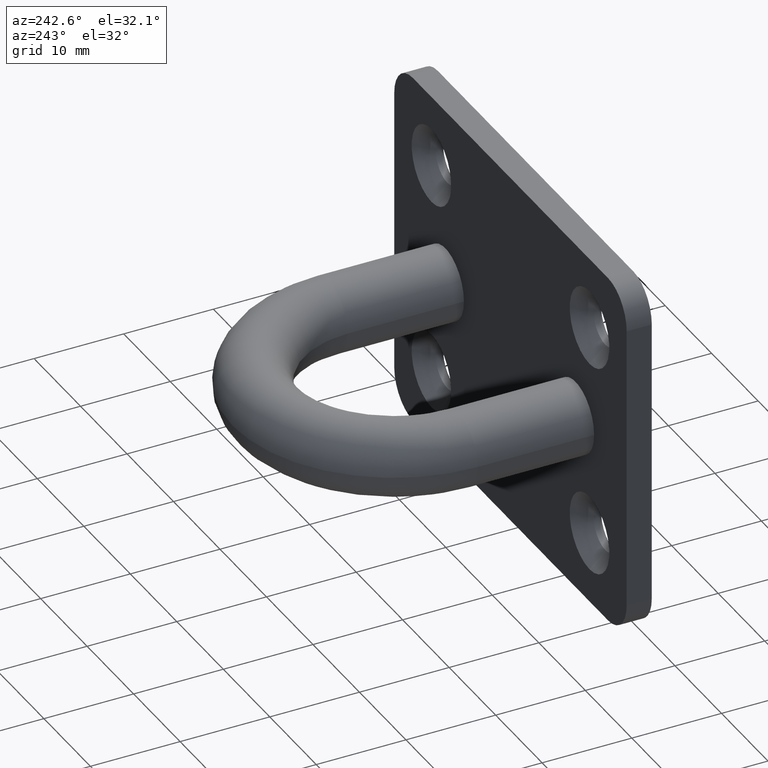
[diagram: clean part render]
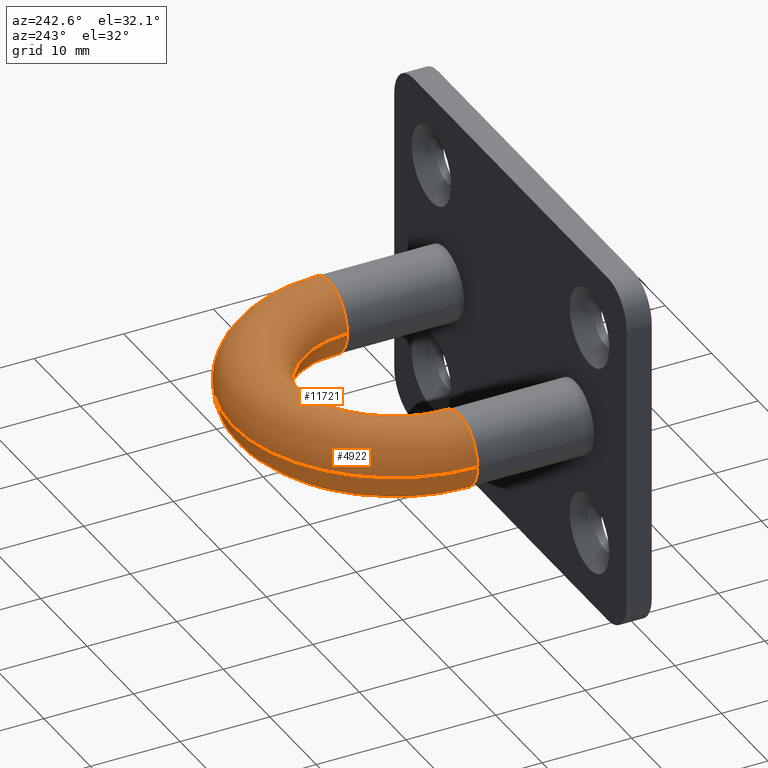
[diagram: same view with one multi-face feature highlighted, each face labeled with its STEP entity id]
A machine part, auxiliary view. The highlighted faces form ONE feature: a constant-radius fillet chain: 2 tangent blend faces with common blend radius 4 mm. The faces share edges in the B-rep.
Their STEP definitions:
[1] entity #11721 (Torus):
#41 = CARTESIAN_POINT ( 'NONE',  ( 0.0000000000000000000, 15.80000000000000100, 0.0000000000000000000 ) ) ;
#222 = DIRECTION ( 'NONE',  ( -1.000000000000000000, 0.0000000000000000000, 0.0000000000000000000 ) ) ;
#2531 = DIRECTION ( 'NONE',  ( -1.000000000000000000, 0.0000000000000000000, 0.0000000000000000000 ) ) ;
#2582 = EDGE_CURVE ( 'NONE', #5016, #12323, #6460, .T. ) ;
#2705 = CARTESIAN_POINT ( 'NONE',  ( 0.0000000000000000000, 15.80000000000000100, 0.0000000000000000000 ) ) ;
#2745 = DIRECTION ( 'NONE',  ( 0.0000000000000000000, -1.000000000000000000, 0.0000000000000000000 ) ) ;
#2915 = CIRCLE ( 'NONE', #13913, 10.00000000000000200 ) ;
#3276 = CIRCLE ( 'NONE', #3815, 4.000000000000000900 ) ;
#3664 = VERTEX_POINT ( 'NONE', #13075 ) ;
#3815 = AXIS2_PLACEMENT_3D ( 'NONE', #13205, #14343, #4561 ) ;
#3989 = DIRECTION ( 'NONE',  ( 0.0000000000000000000, 0.0000000000000000000, -1.000000000000000000 ) ) ;
#4097 = CARTESIAN_POINT ( 'NONE',  ( -14.00000000000000200, 15.80000000000000100, 0.0000000000000000000 ) ) ;
#4561 = DIRECTION ( 'NONE',  ( 0.0000000000000000000, 0.0000000000000000000, -1.000000000000000000 ) ) ;
#5016 = VERTEX_POINT ( 'NONE', #14444 ) ;
#5021 = ORIENTED_EDGE ( 'NONE', *, *, #7474, .T. ) ;
#5167 = ORIENTED_EDGE ( 'NONE', *, *, #12979, .F. ) ;
#5525 = CARTESIAN_POINT ( 'NONE',  ( 18.00000000000000400, 15.80000000000000100, 0.0000000000000000000 ) ) ;
#5654 = AXIS2_PLACEMENT_3D ( 'NONE', #2705, #7301, #222 ) ;
#5953 = EDGE_LOOP ( 'NONE', ( #5167, #11622, #10184, #5021 ) ) ;
#6314 = FACE_OUTER_BOUND ( 'NONE', #5953, .T. ) ;
#6460 = CIRCLE ( 'NONE', #12429, 4.000000000000000900 ) ;
#7301 = DIRECTION ( 'NONE',  ( -0.0000000000000000000, -0.0000000000000000000, -1.000000000000000000 ) ) ;
#7474 = EDGE_CURVE ( 'NONE', #3664, #7913, #3276, .T. ) ;
#7691 = CARTESIAN_POINT ( 'NONE',  ( -18.00000000000000400, 15.80000000000000100, 4.898587196589414800E-016 ) ) ;
#7786 = DIRECTION ( 'NONE',  ( -1.000000000000000000, 0.0000000000000000000, 0.0000000000000000000 ) ) ;
#7815 = EDGE_CURVE ( 'NONE', #5016, #3664, #2915, .T. ) ;
#7913 = VERTEX_POINT ( 'NONE', #5525 ) ;
#10184 = ORIENTED_EDGE ( 'NONE', *, *, #7815, .T. ) ;
#10198 = CARTESIAN_POINT ( 'NONE',  ( 0.0000000000000000000, 15.80000000000000100, 4.898587196589413800E-016 ) ) ;
#10300 = CIRCLE ( 'NONE', #5654, 18.00000000000000400 ) ;
#11622 = ORIENTED_EDGE ( 'NONE', *, *, #2582, .F. ) ;
#11721 = ADVANCED_FACE ( 'NONE', ( #6314 ), #13724, .T. ) ;
#12323 = VERTEX_POINT ( 'NONE', #7691 ) ;
#12429 = AXIS2_PLACEMENT_3D ( 'NONE', #4097, #2745, #3989 ) ;
#12979 = EDGE_CURVE ( 'NONE', #12323, #7913, #10300, .T. ) ;
#13075 = CARTESIAN_POINT ( 'NONE',  ( 10.00000000000000200, 15.80000000000000100, 4.898587196589414800E-016 ) ) ;
#13205 = CARTESIAN_POINT ( 'NONE',  ( 14.00000000000000200, 15.80000000000000100, 0.0000000000000000000 ) ) ;
#13724 = TOROIDAL_SURFACE ( 'NONE', #13880, 14.00000000000000200, 4.000000000000000900 ) ;
#13880 = AXIS2_PLACEMENT_3D ( 'NONE', #41, #14261, #2531 ) ;
#13913 = AXIS2_PLACEMENT_3D ( 'NONE', #10198, #14814, #7786 ) ;
#14261 = DIRECTION ( 'NONE',  ( -0.0000000000000000000, -0.0000000000000000000, -1.000000000000000000 ) ) ;
#14343 = DIRECTION ( 'NONE',  ( -1.224646799147353200E-016, 1.000000000000000000, 0.0000000000000000000 ) ) ;
#14444 = CARTESIAN_POINT ( 'NONE',  ( -10.00000000000000200, 15.80000000000000100, 0.0000000000000000000 ) ) ;
#14814 = DIRECTION ( 'NONE',  ( -0.0000000000000000000, -0.0000000000000000000, -1.000000000000000000 ) ) ;
[2] entity #4922 (Torus):
#222 = DIRECTION ( 'NONE',  ( -1.000000000000000000, 0.0000000000000000000, 0.0000000000000000000 ) ) ;
#1076 = ORIENTED_EDGE ( 'NONE', *, *, #14251, .F. ) ;
#1259 = DIRECTION ( 'NONE',  ( 0.0000000000000000000, 0.0000000000000000000, -1.000000000000000000 ) ) ;
#1341 = CARTESIAN_POINT ( 'NONE',  ( 0.0000000000000000000, 15.80000000000000100, 0.0000000000000000000 ) ) ;
#2074 = DIRECTION ( 'NONE',  ( -1.000000000000000000, 0.0000000000000000000, 0.0000000000000000000 ) ) ;
#2705 = CARTESIAN_POINT ( 'NONE',  ( 0.0000000000000000000, 15.80000000000000100, 0.0000000000000000000 ) ) ;
#2915 = CIRCLE ( 'NONE', #13913, 10.00000000000000200 ) ;
#3610 = TOROIDAL_SURFACE ( 'NONE', #9065, 14.00000000000000200, 4.000000000000000900 ) ;
#3664 = VERTEX_POINT ( 'NONE', #13075 ) ;
#4011 = EDGE_CURVE ( 'NONE', #7913, #3664, #7306, .T. ) ;
#4595 = CARTESIAN_POINT ( 'NONE',  ( 14.00000000000000200, 15.80000000000000100, 0.0000000000000000000 ) ) ;
#4739 = ORIENTED_EDGE ( 'NONE', *, *, #12979, .T. ) ;
#4922 = ADVANCED_FACE ( 'NONE', ( #6741 ), #3610, .T. ) ;
#5016 = VERTEX_POINT ( 'NONE', #14444 ) ;
#5288 = ORIENTED_EDGE ( 'NONE', *, *, #4011, .T. ) ;
#5448 = DIRECTION ( 'NONE',  ( 0.0000000000000000000, -1.000000000000000000, 0.0000000000000000000 ) ) ;
#5525 = CARTESIAN_POINT ( 'NONE',  ( 18.00000000000000400, 15.80000000000000100, 0.0000000000000000000 ) ) ;
#5654 = AXIS2_PLACEMENT_3D ( 'NONE', #2705, #7301, #222 ) ;
#5758 = EDGE_LOOP ( 'NONE', ( #1076, #4739, #5288, #8007 ) ) ;
#6577 = DIRECTION ( 'NONE',  ( 0.0000000000000000000, 0.0000000000000000000, -1.000000000000000000 ) ) ;
#6741 = FACE_OUTER_BOUND ( 'NONE', #5758, .T. ) ;
#7301 = DIRECTION ( 'NONE',  ( -0.0000000000000000000, -0.0000000000000000000, -1.000000000000000000 ) ) ;
#7306 = CIRCLE ( 'NONE', #7873, 4.000000000000000900 ) ;
#7691 = CARTESIAN_POINT ( 'NONE',  ( -18.00000000000000400, 15.80000000000000100, 4.898587196589414800E-016 ) ) ;
#7786 = DIRECTION ( 'NONE',  ( -1.000000000000000000, 0.0000000000000000000, 0.0000000000000000000 ) ) ;
#7815 = EDGE_CURVE ( 'NONE', #5016, #3664, #2915, .T. ) ;
#7873 = AXIS2_PLACEMENT_3D ( 'NONE', #4595, #8048, #1259 ) ;
#7913 = VERTEX_POINT ( 'NONE', #5525 ) ;
#8007 = ORIENTED_EDGE ( 'NONE', *, *, #7815, .F. ) ;
#8048 = DIRECTION ( 'NONE',  ( -1.224646799147353200E-016, 1.000000000000000000, 0.0000000000000000000 ) ) ;
#9065 = AXIS2_PLACEMENT_3D ( 'NONE', #1341, #11949, #2074 ) ;
#10198 = CARTESIAN_POINT ( 'NONE',  ( 0.0000000000000000000, 15.80000000000000100, 4.898587196589413800E-016 ) ) ;
#10300 = CIRCLE ( 'NONE', #5654, 18.00000000000000400 ) ;
#10498 = AXIS2_PLACEMENT_3D ( 'NONE', #14788, #5448, #6577 ) ;
#11949 = DIRECTION ( 'NONE',  ( -0.0000000000000000000, -0.0000000000000000000, -1.000000000000000000 ) ) ;
#12323 = VERTEX_POINT ( 'NONE', #7691 ) ;
#12418 = CIRCLE ( 'NONE', #10498, 4.000000000000000900 ) ;
#12979 = EDGE_CURVE ( 'NONE', #12323, #7913, #10300, .T. ) ;
#13075 = CARTESIAN_POINT ( 'NONE',  ( 10.00000000000000200, 15.80000000000000100, 4.898587196589414800E-016 ) ) ;
#13913 = AXIS2_PLACEMENT_3D ( 'NONE', #10198, #14814, #7786 ) ;
#14251 = EDGE_CURVE ( 'NONE', #12323, #5016, #12418, .T. ) ;
#14444 = CARTESIAN_POINT ( 'NONE',  ( -10.00000000000000200, 15.80000000000000100, 0.0000000000000000000 ) ) ;
#14788 = CARTESIAN_POINT ( 'NONE',  ( -14.00000000000000200, 15.80000000000000100, 0.0000000000000000000 ) ) ;
#14814 = DIRECTION ( 'NONE',  ( -0.0000000000000000000, -0.0000000000000000000, -1.000000000000000000 ) ) ;